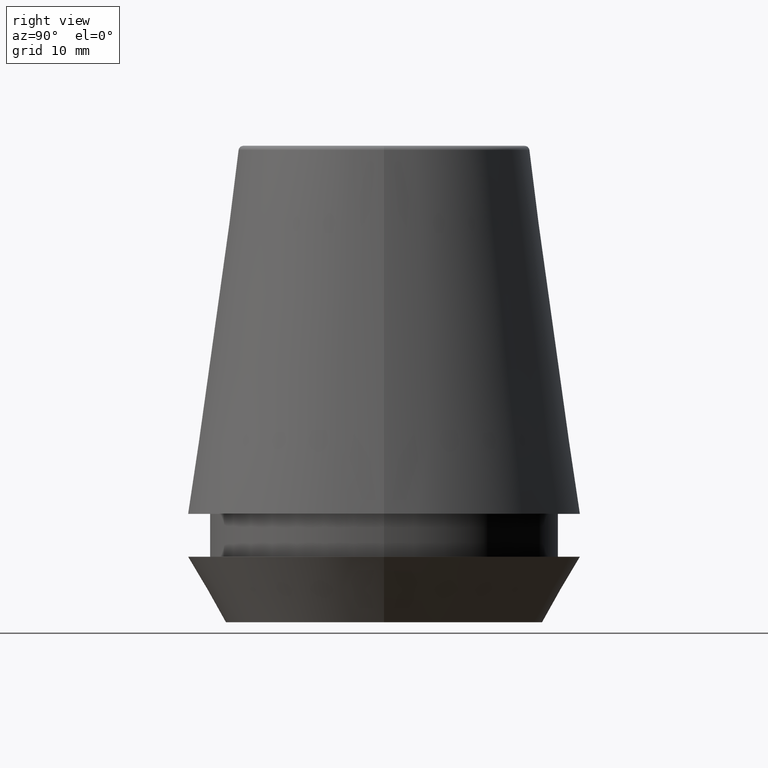
[diagram: clean part render]
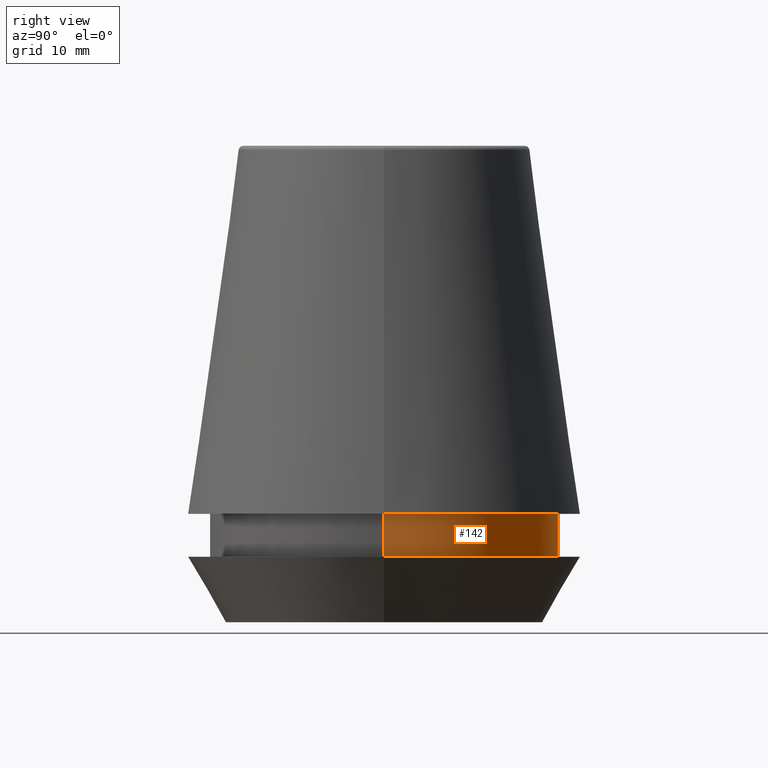
[diagram: same view with one face highlighted and labeled with its STEP entity id]
A machine part, right view. The second image highlights one B-rep face of the part: STEP entity #142.
In plain terms, the highlighted cylindrical surface (partial cylindrical patch) has radius 14.6 mm, axis along (-0, -0, 1).
Its self-contained STEP definition (entity closure, byte-faithful):
#6 = CYLINDRICAL_SURFACE ( 'NONE', #127, 14.60000000000000000 ) ;
#39 = AXIS2_PLACEMENT_3D ( 'NONE', #79, #278, #111 ) ;
#43 = CARTESIAN_POINT ( 'NONE',  ( -14.60000000000000000, 1.787984326755135800E-015, 9.099999999999997900 ) ) ;
#55 = EDGE_LOOP ( 'NONE', ( #271, #306, #337, #295 ) ) ;
#79 = CARTESIAN_POINT ( 'NONE',  ( 0.0000000000000000000, 0.0000000000000000000, 5.500000000000005300 ) ) ;
#89 = CARTESIAN_POINT ( 'NONE',  ( -14.60000000000000000, 1.787984326755135800E-015, 5.500000000000005300 ) ) ;
#93 = LINE ( 'NONE', #146, #158 ) ;
#99 = DIRECTION ( 'NONE',  ( 1.000000000000000000, 0.0000000000000000000, 0.0000000000000000000 ) ) ;
#111 = DIRECTION ( 'NONE',  ( 1.000000000000000000, 0.0000000000000000000, 0.0000000000000000000 ) ) ;
#123 = DIRECTION ( 'NONE',  ( -0.0000000000000000000, -0.0000000000000000000, 1.000000000000000000 ) ) ;
#127 = AXIS2_PLACEMENT_3D ( 'NONE', #182, #345, #311 ) ;
#142 = ADVANCED_FACE ( 'NONE', ( #161 ), #6, .T. ) ;
#143 = EDGE_CURVE ( 'NONE', #233, #246, #318, .T. ) ;
#145 = DIRECTION ( 'NONE',  ( -0.0000000000000000000, -0.0000000000000000000, 1.000000000000000000 ) ) ;
#146 = CARTESIAN_POINT ( 'NONE',  ( -14.60000000000000000, 1.787984326755135800E-015, 101.8074564848000400 ) ) ;
#152 = EDGE_CURVE ( 'NONE', #246, #319, #315, .T. ) ;
#158 = VECTOR ( 'NONE', #240, 1000.000000000000000 ) ;
#161 = FACE_OUTER_BOUND ( 'NONE', #55, .T. ) ;
#182 = CARTESIAN_POINT ( 'NONE',  ( 0.0000000000000000000, 0.0000000000000000000, 101.8074564848000400 ) ) ;
#190 = VERTEX_POINT ( 'NONE', #89 ) ;
#197 = EDGE_CURVE ( 'NONE', #190, #319, #93, .T. ) ;
#226 = CARTESIAN_POINT ( 'NONE',  ( 14.60000000000000000, 0.0000000000000000000, 9.099999999999997900 ) ) ;
#232 = CIRCLE ( 'NONE', #39, 14.60000000000000000 ) ;
#233 = VERTEX_POINT ( 'NONE', #242 ) ;
#240 = DIRECTION ( 'NONE',  ( -0.0000000000000000000, -0.0000000000000000000, 1.000000000000000000 ) ) ;
#242 = CARTESIAN_POINT ( 'NONE',  ( 14.60000000000000000, 0.0000000000000000000, 5.500000000000005300 ) ) ;
#243 = VECTOR ( 'NONE', #145, 1000.000000000000000 ) ;
#246 = VERTEX_POINT ( 'NONE', #226 ) ;
#250 = EDGE_CURVE ( 'NONE', #233, #190, #232, .T. ) ;
#267 = CARTESIAN_POINT ( 'NONE',  ( 14.60000000000000000, 0.0000000000000000000, 101.8074564848000400 ) ) ;
#271 = ORIENTED_EDGE ( 'NONE', *, *, #250, .T. ) ;
#278 = DIRECTION ( 'NONE',  ( -0.0000000000000000000, -0.0000000000000000000, 1.000000000000000000 ) ) ;
#291 = CARTESIAN_POINT ( 'NONE',  ( 0.0000000000000000000, 0.0000000000000000000, 9.099999999999997900 ) ) ;
#293 = AXIS2_PLACEMENT_3D ( 'NONE', #291, #123, #99 ) ;
#295 = ORIENTED_EDGE ( 'NONE', *, *, #143, .F. ) ;
#306 = ORIENTED_EDGE ( 'NONE', *, *, #197, .T. ) ;
#311 = DIRECTION ( 'NONE',  ( 1.000000000000000000, 0.0000000000000000000, 0.0000000000000000000 ) ) ;
#315 = CIRCLE ( 'NONE', #293, 14.60000000000000000 ) ;
#318 = LINE ( 'NONE', #267, #243 ) ;
#319 = VERTEX_POINT ( 'NONE', #43 ) ;
#337 = ORIENTED_EDGE ( 'NONE', *, *, #152, .F. ) ;
#345 = DIRECTION ( 'NONE',  ( -0.0000000000000000000, -0.0000000000000000000, 1.000000000000000000 ) ) ;